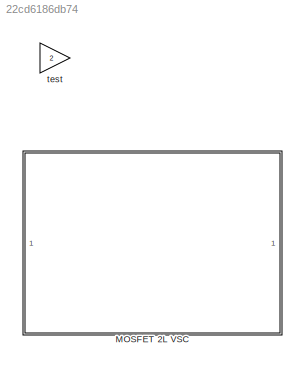
MODEL slx_22cd6186db74
KIND library
CONFIG AbsTol = auto
CONFIG EnableMultiTasking = off
CONFIG FixedStep = auto
CONFIG MaxStep = auto
CONFIG MinStep = auto
CONFIG RelTol = 1e-3
CONFIG SampleTimeConstraint = Unconstrained
CONFIG SolverName = VariableStepAuto
CONFIG StartTime = 0.0
CONFIG StopTime = 10.0
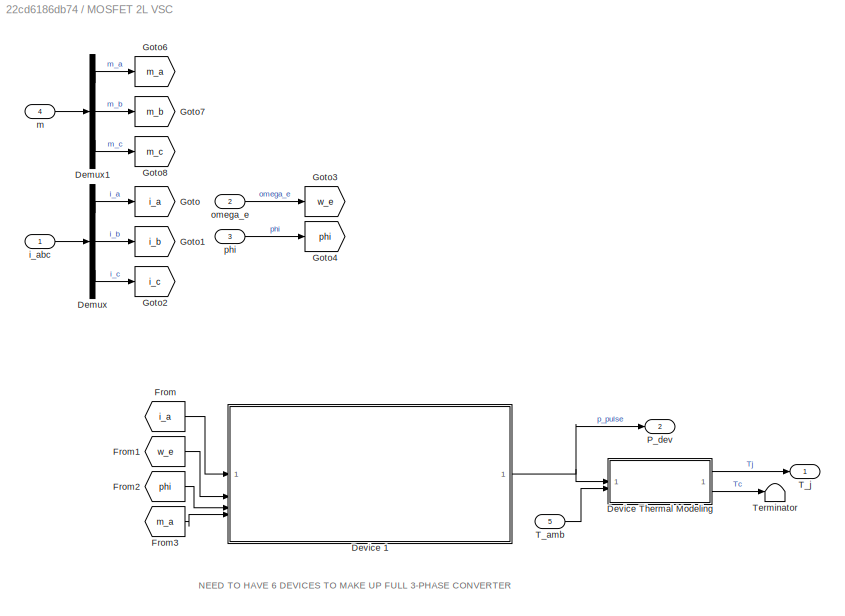
BLOCK [SubSystem] MOSFET 2L VSC
BLOCK [Demux] MOSFET 2L VSC/Demux
  Outputs = 3
BLOCK [Demux] MOSFET 2L VSC/Demux1
  Outputs = 3
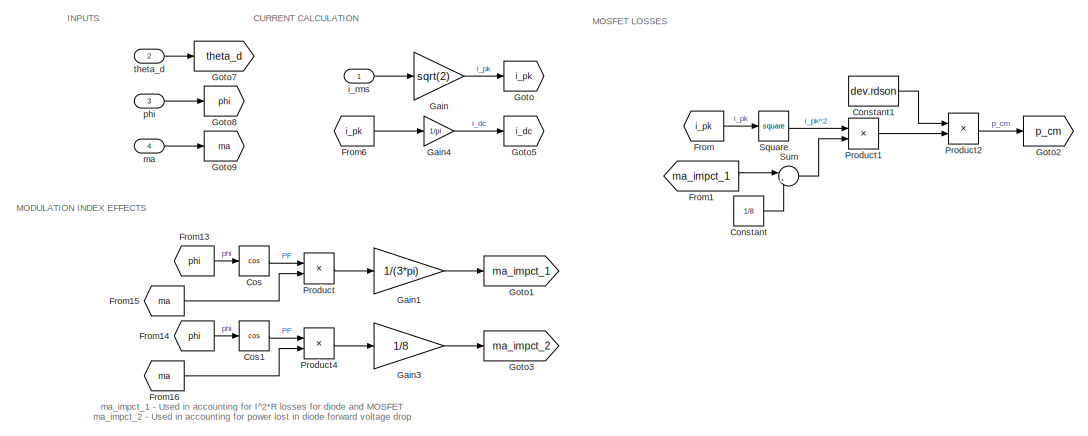
[diagram: MOSFET 2L VSC/Device 1 - part 1/2, left side, full height]
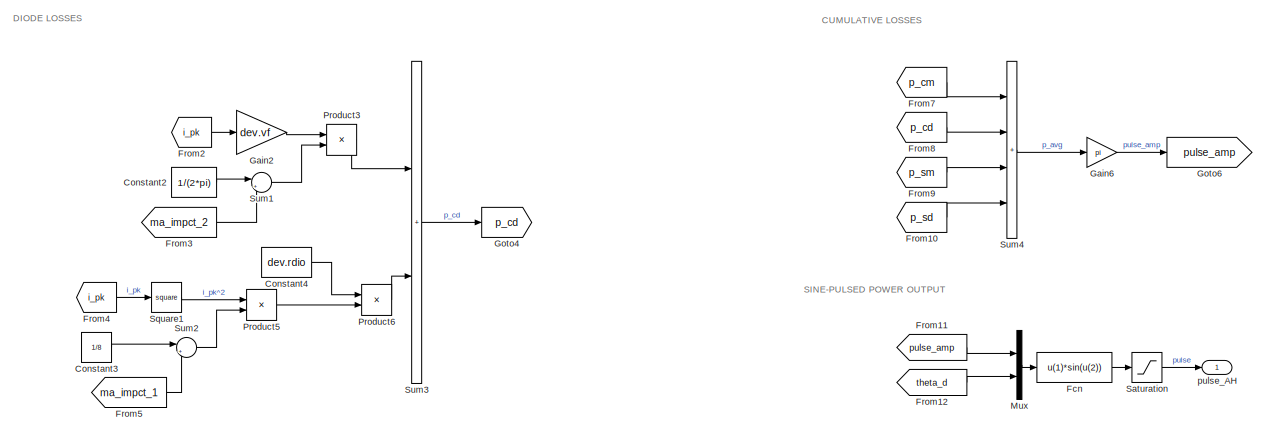
[diagram: MOSFET 2L VSC/Device 1 - part 2/2, right side, full height]
BLOCK [SubSystem] MOSFET 2L VSC/Device 1
BLOCK [Constant] MOSFET 2L VSC/Device 1/Constant
  Value = 1/8
BLOCK [Constant] MOSFET 2L VSC/Device 1/Constant1
  Value = dev.rdson
BLOCK [Constant] MOSFET 2L VSC/Device 1/Constant2
  Value = 1/(2*pi)
BLOCK [Constant] MOSFET 2L VSC/Device 1/Constant3
  Value = 1/8
BLOCK [Constant] MOSFET 2L VSC/Device 1/Constant4
  Value = dev.rdio
BLOCK [Trigonometry] MOSFET 2L VSC/Device 1/Cos
  Operator = cos
BLOCK [Trigonometry] MOSFET 2L VSC/Device 1/Cos1
  Operator = cos
BLOCK [Fcn] MOSFET 2L VSC/Device 1/Fcn
  Expr = u(1)*sin(u(2))
BLOCK [From] MOSFET 2L VSC/Device 1/From
  GotoTag = i_pk
BLOCK [From] MOSFET 2L VSC/Device 1/From1
  GotoTag = ma_impct_1
BLOCK [From] MOSFET 2L VSC/Device 1/From10
  GotoTag = p_sd
BLOCK [From] MOSFET 2L VSC/Device 1/From11
  GotoTag = pulse_amp
BLOCK [From] MOSFET 2L VSC/Device 1/From12
  GotoTag = theta_d
BLOCK [From] MOSFET 2L VSC/Device 1/From13
  GotoTag = phi
BLOCK [From] MOSFET 2L VSC/Device 1/From14
  GotoTag = phi
BLOCK [From] MOSFET 2L VSC/Device 1/From15
  GotoTag = ma
BLOCK [From] MOSFET 2L VSC/Device 1/From16
  GotoTag = ma
BLOCK [From] MOSFET 2L VSC/Device 1/From2
  GotoTag = i_pk
BLOCK [From] MOSFET 2L VSC/Device 1/From3
  GotoTag = ma_impct_2
BLOCK [From] MOSFET 2L VSC/Device 1/From4
  GotoTag = i_pk
BLOCK [From] MOSFET 2L VSC/Device 1/From5
  GotoTag = ma_impct_1
BLOCK [From] MOSFET 2L VSC/Device 1/From6
  GotoTag = i_pk
BLOCK [From] MOSFET 2L VSC/Device 1/From7
  GotoTag = p_cm
BLOCK [From] MOSFET 2L VSC/Device 1/From8
  GotoTag = p_cd
BLOCK [From] MOSFET 2L VSC/Device 1/From9
  GotoTag = p_sm
BLOCK [Gain] MOSFET 2L VSC/Device 1/Gain
  Gain = sqrt(2)
BLOCK [Gain] MOSFET 2L VSC/Device 1/Gain1
  Gain = 1/(3*pi)
BLOCK [Gain] MOSFET 2L VSC/Device 1/Gain2
  Gain = dev.vf
BLOCK [Gain] MOSFET 2L VSC/Device 1/Gain3
  Gain = 1/8
BLOCK [Gain] MOSFET 2L VSC/Device 1/Gain4
  Gain = 1/pi
BLOCK [Gain] MOSFET 2L VSC/Device 1/Gain6
  Gain = pi
BLOCK [Goto] MOSFET 2L VSC/Device 1/Goto
  GotoTag = i_pk
BLOCK [Goto] MOSFET 2L VSC/Device 1/Goto1
  GotoTag = ma_impct_1
BLOCK [Goto] MOSFET 2L VSC/Device 1/Goto2
  GotoTag = p_cm
BLOCK [Goto] MOSFET 2L VSC/Device 1/Goto3
  GotoTag = ma_impct_2
BLOCK [Goto] MOSFET 2L VSC/Device 1/Goto4
  GotoTag = p_cd
BLOCK [Goto] MOSFET 2L VSC/Device 1/Goto5
  GotoTag = i_dc
BLOCK [Goto] MOSFET 2L VSC/Device 1/Goto6
  GotoTag = pulse_amp
BLOCK [Goto] MOSFET 2L VSC/Device 1/Goto7
  GotoTag = theta_d
BLOCK [Goto] MOSFET 2L VSC/Device 1/Goto8
  GotoTag = phi
BLOCK [Goto] MOSFET 2L VSC/Device 1/Goto9
  GotoTag = ma
BLOCK [Mux] MOSFET 2L VSC/Device 1/Mux
  DisplayOption = bar
  Inputs = 2
BLOCK [Product] MOSFET 2L VSC/Device 1/Product
BLOCK [Product] MOSFET 2L VSC/Device 1/Product1
BLOCK [Product] MOSFET 2L VSC/Device 1/Product2
BLOCK [Product] MOSFET 2L VSC/Device 1/Product3
BLOCK [Product] MOSFET 2L VSC/Device 1/Product4
BLOCK [Product] MOSFET 2L VSC/Device 1/Product5
BLOCK [Product] MOSFET 2L VSC/Device 1/Product6
BLOCK [Saturate] MOSFET 2L VSC/Device 1/Saturation
  LowerLimit = 0
  UpperLimit = inf
BLOCK [Math] MOSFET 2L VSC/Device 1/Square
  Operator = square
BLOCK [Math] MOSFET 2L VSC/Device 1/Square1
  Operator = square
BLOCK [Sum] MOSFET 2L VSC/Device 1/Sum
  Inputs = |++
BLOCK [Sum] MOSFET 2L VSC/Device 1/Sum1
  Inputs = |+-
BLOCK [Sum] MOSFET 2L VSC/Device 1/Sum2
  Inputs = |+-
BLOCK [Sum] MOSFET 2L VSC/Device 1/Sum3
  IconShape = rectangular
BLOCK [Sum] MOSFET 2L VSC/Device 1/Sum4
  IconShape = rectangular
  Inputs = ++++
BLOCK [Inport] MOSFET 2L VSC/Device 1/i_rms
BLOCK [Inport] MOSFET 2L VSC/Device 1/ma
  Port = 4
BLOCK [Inport] MOSFET 2L VSC/Device 1/phi
  Port = 3
BLOCK [Outport] MOSFET 2L VSC/Device 1/pulse_AH
BLOCK [Inport] MOSFET 2L VSC/Device 1/theta_d
  Port = 2
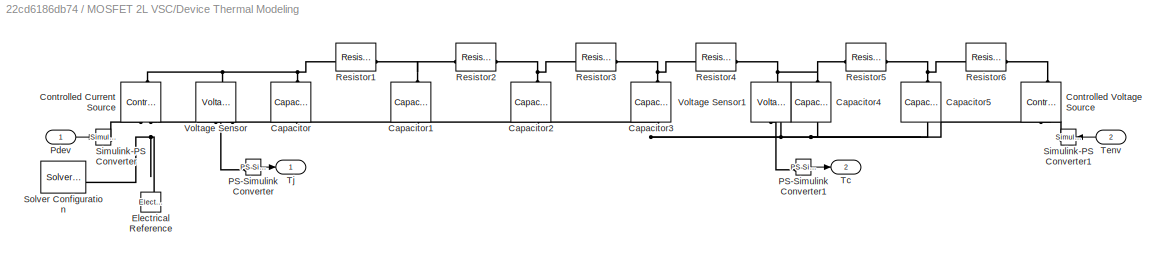
BLOCK [SubSystem] MOSFET 2L VSC/Device Thermal Modeling
BLOCK [Reference] MOSFET 2L VSC/Device Thermal Modeling/Capacitor  REF=fl_lib/Electrical/Electrical Elements/Capacitor
  NameLocation = left
  SourceBlock = fl_lib/Electrical/Electrical Elements/Capacitor
  SourceType = Capacitor
BLOCK [Reference] MOSFET 2L VSC/Device Thermal Modeling/Capacitor1  REF=fl_lib/Electrical/Electrical Elements/Capacitor
  NameLocation = left
  SourceBlock = fl_lib/Electrical/Electrical Elements/Capacitor
  SourceType = Capacitor
BLOCK [Reference] MOSFET 2L VSC/Device Thermal Modeling/Capacitor2  REF=fl_lib/Electrical/Electrical Elements/Capacitor
  NameLocation = left
  SourceBlock = fl_lib/Electrical/Electrical Elements/Capacitor
  SourceType = Capacitor
BLOCK [Reference] MOSFET 2L VSC/Device Thermal Modeling/Capacitor3  REF=fl_lib/Electrical/Electrical Elements/Capacitor
  NameLocation = left
  SourceBlock = fl_lib/Electrical/Electrical Elements/Capacitor
  SourceType = Capacitor
BLOCK [Reference] MOSFET 2L VSC/Device Thermal Modeling/Capacitor4  REF=fl_lib/Electrical/Electrical Elements/Capacitor
  NameLocation = left
  SourceBlock = fl_lib/Electrical/Electrical Elements/Capacitor
  SourceType = Capacitor
BLOCK [Reference] MOSFET 2L VSC/Device Thermal Modeling/Capacitor5  REF=fl_lib/Electrical/Electrical Elements/Capacitor
  NameLocation = left
  SourceBlock = fl_lib/Electrical/Electrical Elements/Capacitor
  SourceType = Capacitor
BLOCK [Reference] MOSFET 2L VSC/Device Thermal Modeling/Controlled Current Source  REF=fl_lib/Electrical/Electrical Sources/Controlled Current
Source
  NameLocation = right
  SourceBlock = fl_lib/Electrical/Electrical Sources/Controlled Current\nSource
  SourceType = Controlled Current\nSource
BLOCK [Reference] MOSFET 2L VSC/Device Thermal Modeling/Controlled Voltage Source  REF=fl_lib/Electrical/Electrical Sources/Controlled Voltage
Source
  NameLocation = right
  SourceBlock = fl_lib/Electrical/Electrical Sources/Controlled Voltage\nSource
  SourceType = Controlled Voltage\nSource
BLOCK [Reference] MOSFET 2L VSC/Device Thermal Modeling/Electrical Reference  REF=fl_lib/Electrical/Electrical Elements/Electrical Reference
  NameLocation = right
  SourceBlock = fl_lib/Electrical/Electrical Elements/Electrical Reference
  SourceType = Electrical Reference
BLOCK [Reference] MOSFET 2L VSC/Device Thermal Modeling/PS-Simulink Converter  REF=nesl_utility/PS-Simulink
Converter
  SourceBlock = nesl_utility/PS-Simulink\nConverter
  SourceType = PS-Simulink\nConverter
BLOCK [Reference] MOSFET 2L VSC/Device Thermal Modeling/PS-Simulink Converter1  REF=nesl_utility/PS-Simulink
Converter
  SourceBlock = nesl_utility/PS-Simulink\nConverter
  SourceType = PS-Simulink\nConverter
BLOCK [Inport] MOSFET 2L VSC/Device Thermal Modeling/Pdev
BLOCK [Reference] MOSFET 2L VSC/Device Thermal Modeling/Resistor1  REF=fl_lib/Electrical/Electrical Elements/Resistor
  SourceBlock = fl_lib/Electrical/Electrical Elements/Resistor
  SourceType = Resistor
BLOCK [Reference] MOSFET 2L VSC/Device Thermal Modeling/Resistor2  REF=fl_lib/Electrical/Electrical Elements/Resistor
  SourceBlock = fl_lib/Electrical/Electrical Elements/Resistor
  SourceType = Resistor
BLOCK [Reference] MOSFET 2L VSC/Device Thermal Modeling/Resistor3  REF=fl_lib/Electrical/Electrical Elements/Resistor
  SourceBlock = fl_lib/Electrical/Electrical Elements/Resistor
  SourceType = Resistor
BLOCK [Reference] MOSFET 2L VSC/Device Thermal Modeling/Resistor4  REF=fl_lib/Electrical/Electrical Elements/Resistor
  SourceBlock = fl_lib/Electrical/Electrical Elements/Resistor
  SourceType = Resistor
BLOCK [Reference] MOSFET 2L VSC/Device Thermal Modeling/Resistor5  REF=fl_lib/Electrical/Electrical Elements/Resistor
  SourceBlock = fl_lib/Electrical/Electrical Elements/Resistor
  SourceType = Resistor
BLOCK [Reference] MOSFET 2L VSC/Device Thermal Modeling/Resistor6  REF=fl_lib/Electrical/Electrical Elements/Resistor
  SourceBlock = fl_lib/Electrical/Electrical Elements/Resistor
  SourceType = Resistor
BLOCK [Reference] MOSFET 2L VSC/Device Thermal Modeling/Simulink-PS Converter  REF=nesl_utility/Simulink-PS
Converter
  SourceBlock = nesl_utility/Simulink-PS\nConverter
  SourceType = Simulink-PS\nConverter
BLOCK [Reference] MOSFET 2L VSC/Device Thermal Modeling/Simulink-PS Converter1  REF=nesl_utility/Simulink-PS
Converter
  NameLocation = top
  SourceBlock = nesl_utility/Simulink-PS\nConverter
  SourceType = Simulink-PS\nConverter
BLOCK [Reference] MOSFET 2L VSC/Device Thermal Modeling/Solver Configuration  REF=nesl_utility/Solver
Configuration
  SourceBlock = nesl_utility/Solver\nConfiguration
  SourceType = Solver\nConfiguration
BLOCK [Outport] MOSFET 2L VSC/Device Thermal Modeling/Tc
  Port = 2
BLOCK [Inport] MOSFET 2L VSC/Device Thermal Modeling/Tenv
  NameLocation = top
  Port = 2
BLOCK [Outport] MOSFET 2L VSC/Device Thermal Modeling/Tj
BLOCK [Reference] MOSFET 2L VSC/Device Thermal Modeling/Voltage Sensor  REF=fl_lib/Electrical/Electrical Sensors/Voltage Sensor
  NameLocation = right
  SourceBlock = fl_lib/Electrical/Electrical Sensors/Voltage Sensor
  SourceType = Voltage Sensor
BLOCK [Reference] MOSFET 2L VSC/Device Thermal Modeling/Voltage Sensor1  REF=fl_lib/Electrical/Electrical Sensors/Voltage Sensor
  NameLocation = right
  SourceBlock = fl_lib/Electrical/Electrical Sensors/Voltage Sensor
  SourceType = Voltage Sensor
BLOCK [From] MOSFET 2L VSC/From
  GotoTag = i_a
BLOCK [From] MOSFET 2L VSC/From1
  GotoTag = w_e
BLOCK [From] MOSFET 2L VSC/From2
  GotoTag = phi
BLOCK [From] MOSFET 2L VSC/From3
  GotoTag = m_a
BLOCK [Goto] MOSFET 2L VSC/Goto
  GotoTag = i_a
BLOCK [Goto] MOSFET 2L VSC/Goto1
  GotoTag = i_b
BLOCK [Goto] MOSFET 2L VSC/Goto2
  GotoTag = i_c
BLOCK [Goto] MOSFET 2L VSC/Goto3
  GotoTag = w_e
BLOCK [Goto] MOSFET 2L VSC/Goto4
  GotoTag = phi
BLOCK [Goto] MOSFET 2L VSC/Goto6
  GotoTag = m_a
BLOCK [Goto] MOSFET 2L VSC/Goto7
  GotoTag = m_b
BLOCK [Goto] MOSFET 2L VSC/Goto8
  GotoTag = m_c
BLOCK [Outport] MOSFET 2L VSC/P_dev
  Port = 2
BLOCK [Inport] MOSFET 2L VSC/T_amb
  Port = 5
BLOCK [Outport] MOSFET 2L VSC/T_j
BLOCK [Terminator] MOSFET 2L VSC/Terminator
BLOCK [Inport] MOSFET 2L VSC/i_abc
BLOCK [Inport] MOSFET 2L VSC/m
  Port = 4
BLOCK [Inport] MOSFET 2L VSC/omega_e
  Port = 2
BLOCK [Inport] MOSFET 2L VSC/phi
  Port = 3
BLOCK [Gain] test
  Gain = 2
ANNOTATION MOSFET 2L VSC: NEED TO HAVE 6 DEVICES TO MAKE UP FULL 3-PHASE CONVERTER
ANNOTATION MOSFET 2L VSC/Device 1: CUMULATIVE LOSSES
ANNOTATION MOSFET 2L VSC/Device 1: CURRENT CALCULATION
ANNOTATION MOSFET 2L VSC/Device 1: DIODE LOSSES
ANNOTATION MOSFET 2L VSC/Device 1: INPUTS
ANNOTATION MOSFET 2L VSC/Device 1: MODULATION INDEX EFFECTS
ANNOTATION MOSFET 2L VSC/Device 1: MOSFET LOSSES
ANNOTATION MOSFET 2L VSC/Device 1: SINE-PULSED POWER OUTPUT
ANNOTATION MOSFET 2L VSC/Device 1: ma_impct_1 - Used in accounting for I^2*R losses for diode and MOSFET ma_impct_2 - Used in accounting for power lost in diode forward voltage drop
LINE MOSFET 2L VSC/Demux1:1 -> MOSFET 2L VSC/Goto6:1
LINE MOSFET 2L VSC/Demux1:2 -> MOSFET 2L VSC/Goto7:1
LINE MOSFET 2L VSC/Demux1:3 -> MOSFET 2L VSC/Goto8:1
LINE MOSFET 2L VSC/Demux:1 -> MOSFET 2L VSC/Goto:1
LINE MOSFET 2L VSC/Demux:2 -> MOSFET 2L VSC/Goto1:1
LINE MOSFET 2L VSC/Demux:3 -> MOSFET 2L VSC/Goto2:1
LINE MOSFET 2L VSC/Device 1/Constant1:1 -> MOSFET 2L VSC/Device 1/Product2:1
LINE MOSFET 2L VSC/Device 1/Constant2:1 -> MOSFET 2L VSC/Device 1/Sum1:1
LINE MOSFET 2L VSC/Device 1/Constant3:1 -> MOSFET 2L VSC/Device 1/Sum2:1
LINE MOSFET 2L VSC/Device 1/Constant4:1 -> MOSFET 2L VSC/Device 1/Product6:1
LINE MOSFET 2L VSC/Device 1/Constant:1 -> MOSFET 2L VSC/Device 1/Sum:2
LINE MOSFET 2L VSC/Device 1/Cos1:1 -> MOSFET 2L VSC/Device 1/Product4:1
LINE MOSFET 2L VSC/Device 1/Cos:1 -> MOSFET 2L VSC/Device 1/Product:1
LINE MOSFET 2L VSC/Device 1/Fcn:1 -> MOSFET 2L VSC/Device 1/Saturation:1
LINE MOSFET 2L VSC/Device 1/From10:1 -> MOSFET 2L VSC/Device 1/Sum4:4
LINE MOSFET 2L VSC/Device 1/From11:1 -> MOSFET 2L VSC/Device 1/Mux:1
LINE MOSFET 2L VSC/Device 1/From12:1 -> MOSFET 2L VSC/Device 1/Mux:2
LINE MOSFET 2L VSC/Device 1/From13:1 -> MOSFET 2L VSC/Device 1/Cos:1
LINE MOSFET 2L VSC/Device 1/From14:1 -> MOSFET 2L VSC/Device 1/Cos1:1
LINE MOSFET 2L VSC/Device 1/From15:1 -> MOSFET 2L VSC/Device 1/Product:2
LINE MOSFET 2L VSC/Device 1/From16:1 -> MOSFET 2L VSC/Device 1/Product4:2
LINE MOSFET 2L VSC/Device 1/From1:1 -> MOSFET 2L VSC/Device 1/Sum:1
LINE MOSFET 2L VSC/Device 1/From2:1 -> MOSFET 2L VSC/Device 1/Gain2:1
LINE MOSFET 2L VSC/Device 1/From3:1 -> MOSFET 2L VSC/Device 1/Sum1:2
LINE MOSFET 2L VSC/Device 1/From4:1 -> MOSFET 2L VSC/Device 1/Square1:1
LINE MOSFET 2L VSC/Device 1/From5:1 -> MOSFET 2L VSC/Device 1/Sum2:2
LINE MOSFET 2L VSC/Device 1/From6:1 -> MOSFET 2L VSC/Device 1/Gain4:1
LINE MOSFET 2L VSC/Device 1/From7:1 -> MOSFET 2L VSC/Device 1/Sum4:1
LINE MOSFET 2L VSC/Device 1/From8:1 -> MOSFET 2L VSC/Device 1/Sum4:2
LINE MOSFET 2L VSC/Device 1/From9:1 -> MOSFET 2L VSC/Device 1/Sum4:3
LINE MOSFET 2L VSC/Device 1/From:1 -> MOSFET 2L VSC/Device 1/Square:1
LINE MOSFET 2L VSC/Device 1/Gain1:1 -> MOSFET 2L VSC/Device 1/Goto1:1
LINE MOSFET 2L VSC/Device 1/Gain2:1 -> MOSFET 2L VSC/Device 1/Product3:1
LINE MOSFET 2L VSC/Device 1/Gain3:1 -> MOSFET 2L VSC/Device 1/Goto3:1
LINE MOSFET 2L VSC/Device 1/Gain4:1 -> MOSFET 2L VSC/Device 1/Goto5:1
LINE MOSFET 2L VSC/Device 1/Gain6:1 -> MOSFET 2L VSC/Device 1/Goto6:1
LINE MOSFET 2L VSC/Device 1/Gain:1 -> MOSFET 2L VSC/Device 1/Goto:1
LINE MOSFET 2L VSC/Device 1/Mux:1 -> MOSFET 2L VSC/Device 1/Fcn:1
LINE MOSFET 2L VSC/Device 1/Product1:1 -> MOSFET 2L VSC/Device 1/Product2:2
LINE MOSFET 2L VSC/Device 1/Product2:1 -> MOSFET 2L VSC/Device 1/Goto2:1
LINE MOSFET 2L VSC/Device 1/Product3:1 -> MOSFET 2L VSC/Device 1/Sum3:1
LINE MOSFET 2L VSC/Device 1/Product4:1 -> MOSFET 2L VSC/Device 1/Gain3:1
LINE MOSFET 2L VSC/Device 1/Product5:1 -> MOSFET 2L VSC/Device 1/Product6:2
LINE MOSFET 2L VSC/Device 1/Product6:1 -> MOSFET 2L VSC/Device 1/Sum3:2
LINE MOSFET 2L VSC/Device 1/Product:1 -> MOSFET 2L VSC/Device 1/Gain1:1
LINE MOSFET 2L VSC/Device 1/Saturation:1 -> MOSFET 2L VSC/Device 1/pulse_AH:1
LINE MOSFET 2L VSC/Device 1/Square1:1 -> MOSFET 2L VSC/Device 1/Product5:1
LINE MOSFET 2L VSC/Device 1/Square:1 -> MOSFET 2L VSC/Device 1/Product1:1
LINE MOSFET 2L VSC/Device 1/Sum1:1 -> MOSFET 2L VSC/Device 1/Product3:2
LINE MOSFET 2L VSC/Device 1/Sum2:1 -> MOSFET 2L VSC/Device 1/Product5:2
LINE MOSFET 2L VSC/Device 1/Sum3:1 -> MOSFET 2L VSC/Device 1/Goto4:1
LINE MOSFET 2L VSC/Device 1/Sum4:1 -> MOSFET 2L VSC/Device 1/Gain6:1
LINE MOSFET 2L VSC/Device 1/Sum:1 -> MOSFET 2L VSC/Device 1/Product1:2
LINE MOSFET 2L VSC/Device 1/i_rms:1 -> MOSFET 2L VSC/Device 1/Gain:1
LINE MOSFET 2L VSC/Device 1/ma:1 -> MOSFET 2L VSC/Device 1/Goto9:1
LINE MOSFET 2L VSC/Device 1/phi:1 -> MOSFET 2L VSC/Device 1/Goto8:1
LINE MOSFET 2L VSC/Device 1/theta_d:1 -> MOSFET 2L VSC/Device 1/Goto7:1
NET MOSFET 2L VSC/Device 1:1 -> MOSFET 2L VSC/Device Thermal Modeling:1, MOSFET 2L VSC/P_dev:1
LINE MOSFET 2L VSC/Device Thermal Modeling/PS-Simulink Converter1:1 -> MOSFET 2L VSC/Device Thermal Modeling/Tc:1
LINE MOSFET 2L VSC/Device Thermal Modeling/PS-Simulink Converter:1 -> MOSFET 2L VSC/Device Thermal Modeling/Tj:1
LINE MOSFET 2L VSC/Device Thermal Modeling/Pdev:1 -> MOSFET 2L VSC/Device Thermal Modeling/Simulink-PS Converter:1
LINE MOSFET 2L VSC/Device Thermal Modeling/Tenv:1 -> MOSFET 2L VSC/Device Thermal Modeling/Simulink-PS Converter1:1
LINE MOSFET 2L VSC/Device Thermal Modeling:1 -> MOSFET 2L VSC/T_j:1
LINE MOSFET 2L VSC/Device Thermal Modeling:2 -> MOSFET 2L VSC/Terminator:1
LINE MOSFET 2L VSC/From1:1 -> MOSFET 2L VSC/Device 1:2
LINE MOSFET 2L VSC/From2:1 -> MOSFET 2L VSC/Device 1:3
LINE MOSFET 2L VSC/From3:1 -> MOSFET 2L VSC/Device 1:4
LINE MOSFET 2L VSC/From:1 -> MOSFET 2L VSC/Device 1:1
LINE MOSFET 2L VSC/T_amb:1 -> MOSFET 2L VSC/Device Thermal Modeling:2
LINE MOSFET 2L VSC/i_abc:1 -> MOSFET 2L VSC/Demux:1
LINE MOSFET 2L VSC/m:1 -> MOSFET 2L VSC/Demux1:1
LINE MOSFET 2L VSC/omega_e:1 -> MOSFET 2L VSC/Goto3:1
LINE MOSFET 2L VSC/phi:1 -> MOSFET 2L VSC/Goto4:1
PNET net1: MOSFET 2L VSC/Device Thermal Modeling/Capacitor1:LConn1 -- MOSFET 2L VSC/Device Thermal Modeling/Resistor1:RConn1 -- MOSFET 2L VSC/Device Thermal Modeling/Resistor2:LConn1
PNET net2: MOSFET 2L VSC/Device Thermal Modeling/Capacitor1:RConn1 -- MOSFET 2L VSC/Device Thermal Modeling/Capacitor2:RConn1 -- MOSFET 2L VSC/Device Thermal Modeling/Capacitor3:RConn1 -- MOSFET 2L VSC/Device Thermal Modeling/Capacitor4:RConn1 -- MOSFET 2L VSC/Device Thermal Modeling/Capacitor5:RConn1 -- MOSFET 2L VSC/Device Thermal Modeling/Capacitor:RConn1 -- MOSFET 2L VSC/Device Thermal Modeling/Controlled Current Source:RConn2 -- MOSFET 2L VSC/Device Thermal Modeling/Controlled Voltage Source:RConn2 -- MOSFET 2L VSC/Device Thermal Modeling/Electrical Reference:LConn1 -- MOSFET 2L VSC/Device Thermal Modeling/Solver Configuration:RConn1 -- MOSFET 2L VSC/Device Thermal Modeling/Voltage Sensor1:RConn2 -- MOSFET 2L VSC/Device Thermal Modeling/Voltage Sensor:RConn2
PNET net3: MOSFET 2L VSC/Device Thermal Modeling/Capacitor2:LConn1 -- MOSFET 2L VSC/Device Thermal Modeling/Resistor2:RConn1 -- MOSFET 2L VSC/Device Thermal Modeling/Resistor3:LConn1
PNET net4: MOSFET 2L VSC/Device Thermal Modeling/Capacitor3:LConn1 -- MOSFET 2L VSC/Device Thermal Modeling/Resistor3:RConn1 -- MOSFET 2L VSC/Device Thermal Modeling/Resistor4:LConn1
PNET net5: MOSFET 2L VSC/Device Thermal Modeling/Capacitor4:LConn1 -- MOSFET 2L VSC/Device Thermal Modeling/Resistor4:RConn1 -- MOSFET 2L VSC/Device Thermal Modeling/Resistor5:LConn1 -- MOSFET 2L VSC/Device Thermal Modeling/Voltage Sensor1:LConn1
PNET net6: MOSFET 2L VSC/Device Thermal Modeling/Capacitor5:LConn1 -- MOSFET 2L VSC/Device Thermal Modeling/Resistor5:RConn1 -- MOSFET 2L VSC/Device Thermal Modeling/Resistor6:LConn1
PNET net7: MOSFET 2L VSC/Device Thermal Modeling/Capacitor:LConn1 -- MOSFET 2L VSC/Device Thermal Modeling/Controlled Current Source:LConn1 -- MOSFET 2L VSC/Device Thermal Modeling/Resistor1:LConn1 -- MOSFET 2L VSC/Device Thermal Modeling/Voltage Sensor:LConn1
PLINE MOSFET 2L VSC/Device Thermal Modeling/Controlled Current Source:RConn1 -- MOSFET 2L VSC/Device Thermal Modeling/Simulink-PS Converter:RConn1
PLINE MOSFET 2L VSC/Device Thermal Modeling/Controlled Voltage Source:LConn1 -- MOSFET 2L VSC/Device Thermal Modeling/Resistor6:RConn1
PLINE MOSFET 2L VSC/Device Thermal Modeling/Controlled Voltage Source:RConn1 -- MOSFET 2L VSC/Device Thermal Modeling/Simulink-PS Converter1:RConn1
PLINE MOSFET 2L VSC/Device Thermal Modeling/PS-Simulink Converter1:LConn1 -- MOSFET 2L VSC/Device Thermal Modeling/Voltage Sensor1:RConn1
PLINE MOSFET 2L VSC/Device Thermal Modeling/PS-Simulink Converter:LConn1 -- MOSFET 2L VSC/Device Thermal Modeling/Voltage Sensor:RConn1
note: NET lines group one-source signal fan-out (src -> all destinations, sorted); 1:1 wires keep LINE; PNET lines group multi-terminal physical nets as a canonical sorted terminal list (undirected conserving connections); 2-terminal nets keep the pairwise PLINE form
